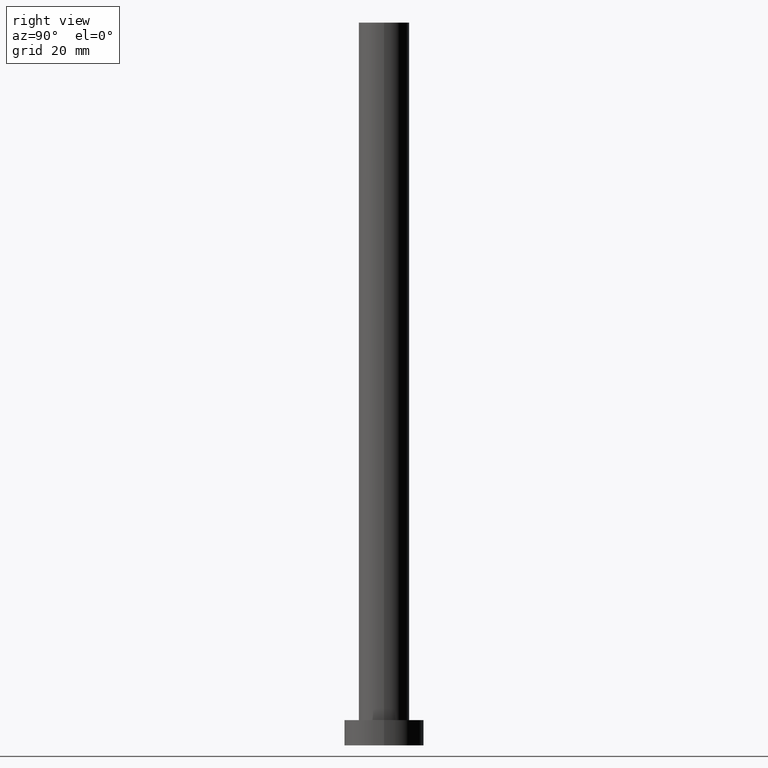
[diagram: clean part render]
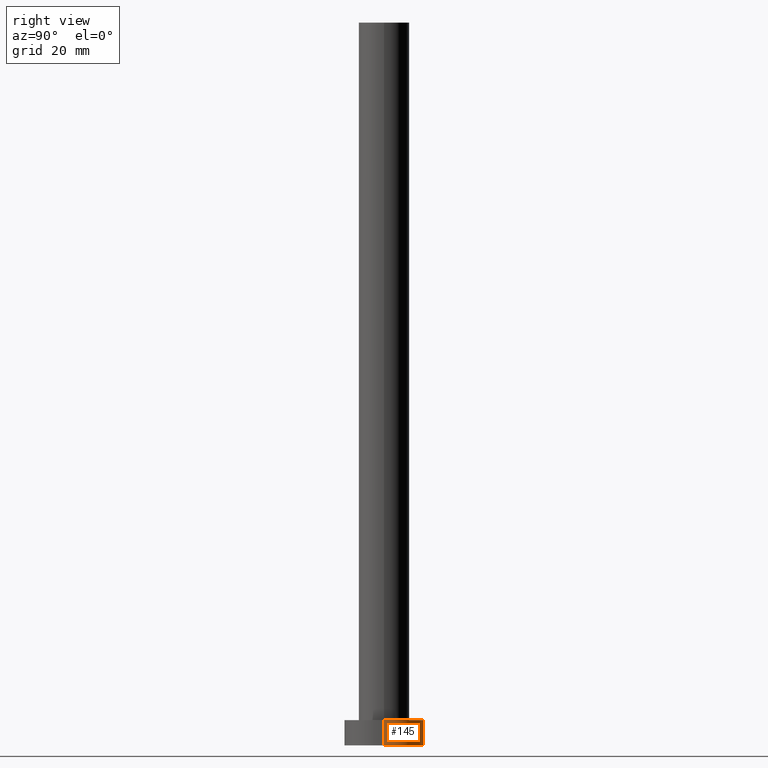
[diagram: same view with one face highlighted and labeled with its STEP entity id]
A machine part, right view. The second image highlights one B-rep face of the part: STEP entity #145.
In plain terms, the highlighted cylindrical surface (partial cylindrical patch) has radius 11 mm, axis along (-0, -0, -1).
Its self-contained STEP definition (entity closure, byte-faithful):
#6 = CARTESIAN_POINT ( 'NONE',  ( 11.00000000000000000, 1.347111479062088405E-15, 0.000000000000000000 ) ) ;
#28 = AXIS2_PLACEMENT_3D ( 'NONE', #197, #237, #59 ) ;
#30 = DIRECTION ( 'NONE',  ( 0.000000000000000000, 0.000000000000000000, 1.000000000000000000 ) ) ;
#51 = DIRECTION ( 'NONE',  ( -0.000000000000000000, -0.000000000000000000, -1.000000000000000000 ) ) ;
#59 = DIRECTION ( 'NONE',  ( -1.000000000000000000, 0.000000000000000000, 0.000000000000000000 ) ) ;
#61 = DIRECTION ( 'NONE',  ( 0.000000000000000000, 0.000000000000000000, 1.000000000000000000 ) ) ;
#70 = EDGE_CURVE ( 'NONE', #217, #177, #149, .T. ) ;
#78 = CARTESIAN_POINT ( 'NONE',  ( 0.000000000000000000, 0.000000000000000000, 7.000000000000000000 ) ) ;
#81 = VECTOR ( 'NONE', #106, 1000.000000000000000 ) ;
#82 = ORIENTED_EDGE ( 'NONE', *, *, #176, .F. ) ;
#83 = CARTESIAN_POINT ( 'NONE',  ( -11.00000000000000000, 0.000000000000000000, 7.000000000000000000 ) ) ;
#98 = DIRECTION ( 'NONE',  ( 1.000000000000000000, 0.000000000000000000, 0.000000000000000000 ) ) ;
#100 = ORIENTED_EDGE ( 'NONE', *, *, #70, .T. ) ;
#103 = CIRCLE ( 'NONE', #182, 11.00000000000000000 ) ;
#104 = EDGE_CURVE ( 'NONE', #212, #133, #220, .T. ) ;
#106 = DIRECTION ( 'NONE',  ( -0.000000000000000000, -0.000000000000000000, -1.000000000000000000 ) ) ;
#118 = CYLINDRICAL_SURFACE ( 'NONE', #28, 11.00000000000000000 ) ;
#119 = CIRCLE ( 'NONE', #223, 11.00000000000000000 ) ;
#122 = CARTESIAN_POINT ( 'NONE',  ( 0.000000000000000000, 0.000000000000000000, 0.000000000000000000 ) ) ;
#123 = CARTESIAN_POINT ( 'NONE',  ( -11.00000000000000000, 0.000000000000000000, 7.000000000000000000 ) ) ;
#132 = CARTESIAN_POINT ( 'NONE',  ( -11.00000000000000000, 0.000000000000000000, 0.000000000000000000 ) ) ;
#133 = VERTEX_POINT ( 'NONE', #132 ) ;
#145 = ADVANCED_FACE ( 'NONE', ( #241 ), #118, .T. ) ;
#149 = LINE ( 'NONE', #226, #200 ) ;
#163 = CARTESIAN_POINT ( 'NONE',  ( 11.00000000000000000, 1.347111479062088405E-15, 7.000000000000000000 ) ) ;
#167 = ORIENTED_EDGE ( 'NONE', *, *, #207, .T. ) ;
#176 = EDGE_CURVE ( 'NONE', #217, #212, #119, .T. ) ;
#177 = VERTEX_POINT ( 'NONE', #6 ) ;
#182 = AXIS2_PLACEMENT_3D ( 'NONE', #122, #30, #198 ) ;
#197 = CARTESIAN_POINT ( 'NONE',  ( 0.000000000000000000, 0.000000000000000000, 7.000000000000000000 ) ) ;
#198 = DIRECTION ( 'NONE',  ( 1.000000000000000000, 0.000000000000000000, 0.000000000000000000 ) ) ;
#200 = VECTOR ( 'NONE', #51, 1000.000000000000000 ) ;
#207 = EDGE_CURVE ( 'NONE', #177, #133, #103, .T. ) ;
#210 = ORIENTED_EDGE ( 'NONE', *, *, #104, .F. ) ;
#212 = VERTEX_POINT ( 'NONE', #83 ) ;
#217 = VERTEX_POINT ( 'NONE', #163 ) ;
#220 = LINE ( 'NONE', #123, #81 ) ;
#223 = AXIS2_PLACEMENT_3D ( 'NONE', #78, #61, #98 ) ;
#226 = CARTESIAN_POINT ( 'NONE',  ( 11.00000000000000000, 1.347111479062088405E-15, 7.000000000000000000 ) ) ;
#237 = DIRECTION ( 'NONE',  ( -0.000000000000000000, -0.000000000000000000, -1.000000000000000000 ) ) ;
#239 = EDGE_LOOP ( 'NONE', ( #82, #100, #167, #210 ) ) ;
#241 = FACE_OUTER_BOUND ( 'NONE', #239, .T. ) ;